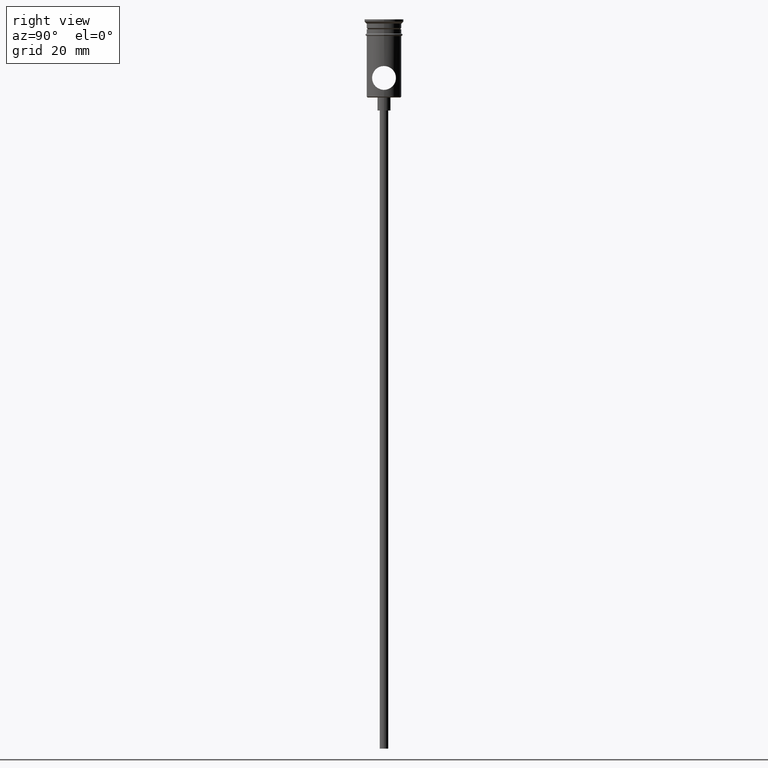
[diagram: clean part render]
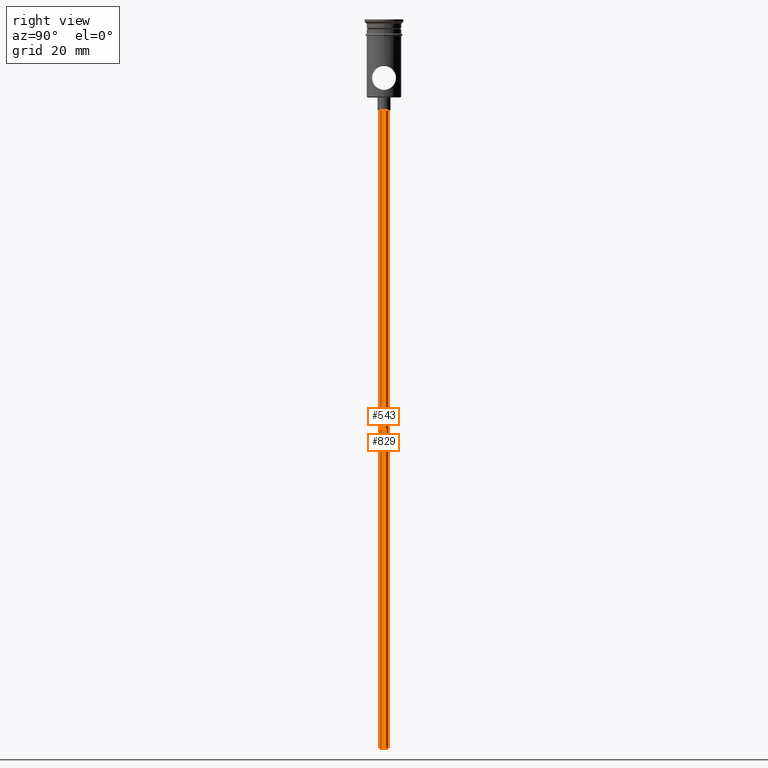
[diagram: same view with one multi-face feature highlighted, each face labeled with its STEP entity id]
A machine part, right view. The highlighted faces form ONE feature: a constant-radius fillet chain: 2 tangent blend faces with common blend radius 1 mm. The faces share edges in the B-rep.
Their STEP definitions:
[1] entity #829 (Cylinder):
#25 = VERTEX_POINT ( 'NONE', #1402 ) ;
#34 = ORIENTED_EDGE ( 'NONE', *, *, #252, .T. ) ;
#116 = DIRECTION ( 'NONE',  ( -0.000000000000000000, -0.000000000000000000, 1.000000000000000000 ) ) ;
#122 = EDGE_CURVE ( 'NONE', #204, #25, #639, .T. ) ;
#142 = VECTOR ( 'NONE', #116, 1000.000000000000000 ) ;
#204 = VERTEX_POINT ( 'NONE', #500 ) ;
#246 = DIRECTION ( 'NONE',  ( 0.000000000000000000, 0.000000000000000000, -1.000000000000000000 ) ) ;
#252 = EDGE_CURVE ( 'NONE', #654, #670, #548, .T. ) ;
#269 = CARTESIAN_POINT ( 'NONE',  ( 0.000000000000000000, 0.000000000000000000, -20.99999999999999645 ) ) ;
#270 = DIRECTION ( 'NONE',  ( 1.000000000000000000, 0.000000000000000000, 0.000000000000000000 ) ) ;
#285 = DIRECTION ( 'NONE',  ( 0.000000000000000000, 0.000000000000000000, -1.000000000000000000 ) ) ;
#349 = CARTESIAN_POINT ( 'NONE',  ( 0.000000000000000000, 0.000000000000000000, -167.9999999999999716 ) ) ;
#357 = CARTESIAN_POINT ( 'NONE',  ( 0.000000000000000000, 0.000000000000000000, -167.9999999999999716 ) ) ;
#408 = AXIS2_PLACEMENT_3D ( 'NONE', #269, #285, #704 ) ;
#432 = CARTESIAN_POINT ( 'NONE',  ( 0.9999999999999997780, 0.000000000000000000, -167.9999999999999716 ) ) ;
#433 = AXIS2_PLACEMENT_3D ( 'NONE', #349, #246, #1113 ) ;
#450 = ORIENTED_EDGE ( 'NONE', *, *, #479, .T. ) ;
#479 = EDGE_CURVE ( 'NONE', #204, #654, #509, .T. ) ;
#500 = CARTESIAN_POINT ( 'NONE',  ( -0.9999999999999997780, 1.224646799147352961E-16, -167.9999999999999716 ) ) ;
#509 = LINE ( 'NONE', #939, #974 ) ;
#521 = EDGE_CURVE ( 'NONE', #25, #670, #558, .T. ) ;
#546 = CARTESIAN_POINT ( 'NONE',  ( 0.9999999999999997780, 0.000000000000000000, -20.99999999999999645 ) ) ;
#548 = CIRCLE ( 'NONE', #408, 0.9999999999999997780 ) ;
#558 = LINE ( 'NONE', #432, #142 ) ;
#569 = CARTESIAN_POINT ( 'NONE',  ( -0.9999999999999997780, 1.224646799147352961E-16, -20.99999999999999645 ) ) ;
#583 = DIRECTION ( 'NONE',  ( -0.000000000000000000, -0.000000000000000000, 1.000000000000000000 ) ) ;
#584 = ORIENTED_EDGE ( 'NONE', *, *, #521, .F. ) ;
#639 = CIRCLE ( 'NONE', #433, 0.9999999999999997780 ) ;
#654 = VERTEX_POINT ( 'NONE', #569 ) ;
#670 = VERTEX_POINT ( 'NONE', #546 ) ;
#704 = DIRECTION ( 'NONE',  ( -1.000000000000000000, 0.000000000000000000, 0.000000000000000000 ) ) ;
#829 = ADVANCED_FACE ( 'NONE', ( #1345 ), #1350, .T. ) ;
#939 = CARTESIAN_POINT ( 'NONE',  ( -0.9999999999999997780, 1.224646799147352961E-16, -167.9999999999999716 ) ) ;
#959 = ORIENTED_EDGE ( 'NONE', *, *, #122, .F. ) ;
#974 = VECTOR ( 'NONE', #1366, 1000.000000000000000 ) ;
#1113 = DIRECTION ( 'NONE',  ( -1.000000000000000000, 0.000000000000000000, 0.000000000000000000 ) ) ;
#1174 = AXIS2_PLACEMENT_3D ( 'NONE', #357, #583, #270 ) ;
#1185 = EDGE_LOOP ( 'NONE', ( #959, #450, #34, #584 ) ) ;
#1345 = FACE_OUTER_BOUND ( 'NONE', #1185, .T. ) ;
#1350 = CYLINDRICAL_SURFACE ( 'NONE', #1174, 0.9999999999999997780 ) ;
#1366 = DIRECTION ( 'NONE',  ( -0.000000000000000000, -0.000000000000000000, 1.000000000000000000 ) ) ;
#1402 = CARTESIAN_POINT ( 'NONE',  ( 0.9999999999999997780, 0.000000000000000000, -167.9999999999999716 ) ) ;
[2] entity #543 (Cylinder):
#19 = AXIS2_PLACEMENT_3D ( 'NONE', #1048, #1168, #1158 ) ;
#25 = VERTEX_POINT ( 'NONE', #1402 ) ;
#116 = DIRECTION ( 'NONE',  ( -0.000000000000000000, -0.000000000000000000, 1.000000000000000000 ) ) ;
#124 = FACE_OUTER_BOUND ( 'NONE', #648, .T. ) ;
#142 = VECTOR ( 'NONE', #116, 1000.000000000000000 ) ;
#204 = VERTEX_POINT ( 'NONE', #500 ) ;
#226 = DIRECTION ( 'NONE',  ( 1.000000000000000000, 0.000000000000000000, 0.000000000000000000 ) ) ;
#234 = CARTESIAN_POINT ( 'NONE',  ( 0.000000000000000000, 0.000000000000000000, -20.99999999999999645 ) ) ;
#286 = EDGE_CURVE ( 'NONE', #25, #204, #746, .T. ) ;
#403 = ORIENTED_EDGE ( 'NONE', *, *, #521, .T. ) ;
#432 = CARTESIAN_POINT ( 'NONE',  ( 0.9999999999999997780, 0.000000000000000000, -167.9999999999999716 ) ) ;
#441 = DIRECTION ( 'NONE',  ( 0.000000000000000000, 0.000000000000000000, -1.000000000000000000 ) ) ;
#451 = CYLINDRICAL_SURFACE ( 'NONE', #729, 0.9999999999999997780 ) ;
#479 = EDGE_CURVE ( 'NONE', #204, #654, #509, .T. ) ;
#498 = ORIENTED_EDGE ( 'NONE', *, *, #286, .F. ) ;
#500 = CARTESIAN_POINT ( 'NONE',  ( -0.9999999999999997780, 1.224646799147352961E-16, -167.9999999999999716 ) ) ;
#509 = LINE ( 'NONE', #939, #974 ) ;
#521 = EDGE_CURVE ( 'NONE', #25, #670, #558, .T. ) ;
#543 = ADVANCED_FACE ( 'NONE', ( #124 ), #451, .T. ) ;
#546 = CARTESIAN_POINT ( 'NONE',  ( 0.9999999999999997780, 0.000000000000000000, -20.99999999999999645 ) ) ;
#555 = DIRECTION ( 'NONE',  ( -1.000000000000000000, 0.000000000000000000, 0.000000000000000000 ) ) ;
#558 = LINE ( 'NONE', #432, #142 ) ;
#563 = ORIENTED_EDGE ( 'NONE', *, *, #479, .F. ) ;
#569 = CARTESIAN_POINT ( 'NONE',  ( -0.9999999999999997780, 1.224646799147352961E-16, -20.99999999999999645 ) ) ;
#648 = EDGE_LOOP ( 'NONE', ( #563, #498, #403, #737 ) ) ;
#654 = VERTEX_POINT ( 'NONE', #569 ) ;
#670 = VERTEX_POINT ( 'NONE', #546 ) ;
#675 = DIRECTION ( 'NONE',  ( -0.000000000000000000, -0.000000000000000000, 1.000000000000000000 ) ) ;
#707 = EDGE_CURVE ( 'NONE', #670, #654, #1386, .T. ) ;
#729 = AXIS2_PLACEMENT_3D ( 'NONE', #1190, #675, #226 ) ;
#737 = ORIENTED_EDGE ( 'NONE', *, *, #707, .T. ) ;
#746 = CIRCLE ( 'NONE', #19, 0.9999999999999997780 ) ;
#937 = AXIS2_PLACEMENT_3D ( 'NONE', #234, #441, #555 ) ;
#939 = CARTESIAN_POINT ( 'NONE',  ( -0.9999999999999997780, 1.224646799147352961E-16, -167.9999999999999716 ) ) ;
#974 = VECTOR ( 'NONE', #1366, 1000.000000000000000 ) ;
#1048 = CARTESIAN_POINT ( 'NONE',  ( 0.000000000000000000, 0.000000000000000000, -167.9999999999999716 ) ) ;
#1158 = DIRECTION ( 'NONE',  ( -1.000000000000000000, 0.000000000000000000, 0.000000000000000000 ) ) ;
#1168 = DIRECTION ( 'NONE',  ( 0.000000000000000000, 0.000000000000000000, -1.000000000000000000 ) ) ;
#1190 = CARTESIAN_POINT ( 'NONE',  ( 0.000000000000000000, 0.000000000000000000, -167.9999999999999716 ) ) ;
#1366 = DIRECTION ( 'NONE',  ( -0.000000000000000000, -0.000000000000000000, 1.000000000000000000 ) ) ;
#1386 = CIRCLE ( 'NONE', #937, 0.9999999999999997780 ) ;
#1402 = CARTESIAN_POINT ( 'NONE',  ( 0.9999999999999997780, 0.000000000000000000, -167.9999999999999716 ) ) ;